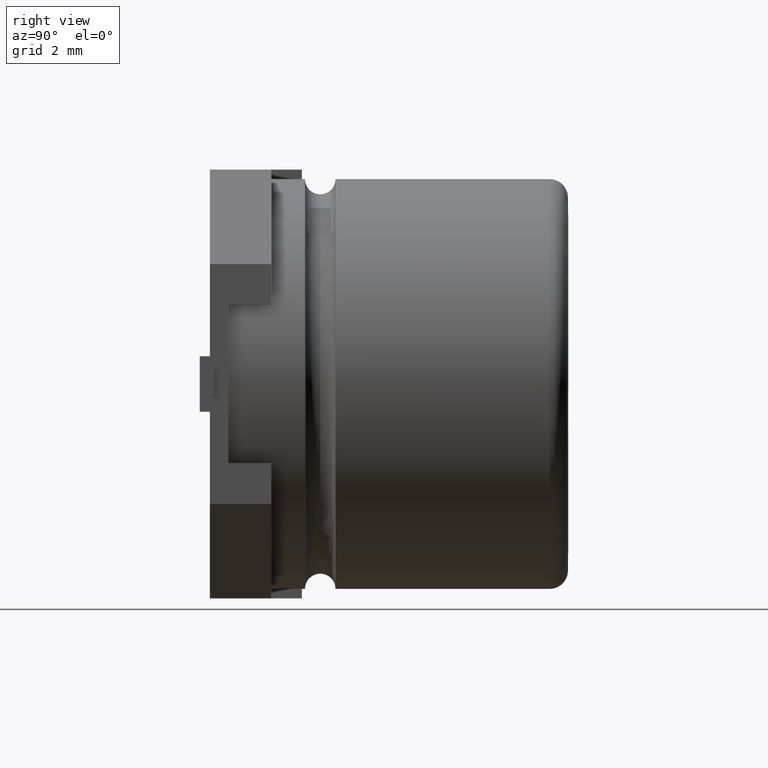
[diagram: clean part render]
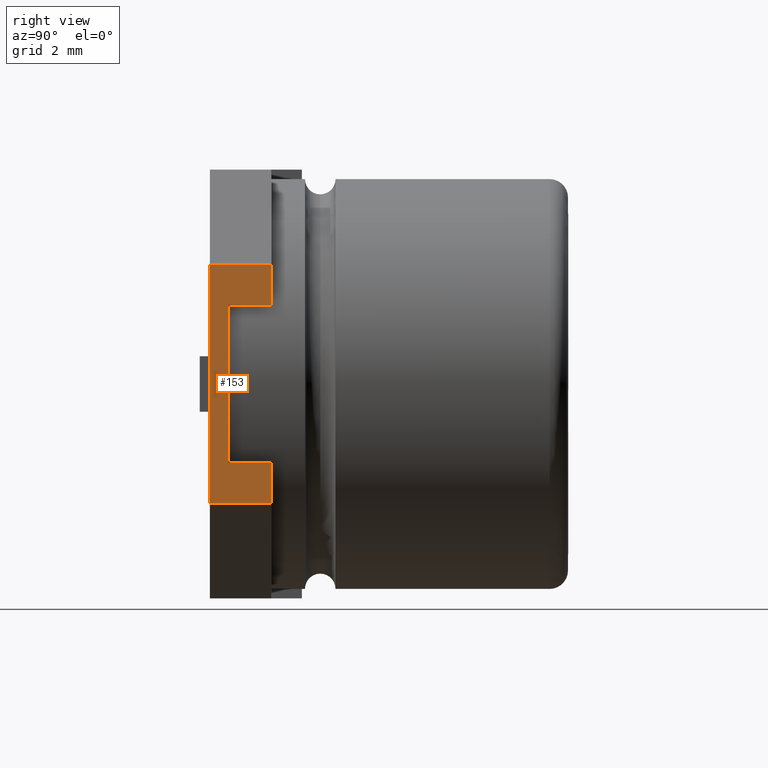
[diagram: same view with one face highlighted and labeled with its STEP entity id]
A machine part, right view. The second image highlights one B-rep face of the part: STEP entity #153.
In plain terms, the highlighted planar face has unit normal (-1, 0, 0).
Its self-contained STEP definition (entity closure, byte-faithful):
#3 = DIRECTION ( 'NONE',  ( -0.0000000000000000000, 1.000000000000000000, -0.0000000000000000000 ) ) ;
#100 = LINE ( 'NONE', #809, #484 ) ;
#116 = EDGE_CURVE ( 'NONE', #2856, #691, #1052, .T. ) ;
#153 = ADVANCED_FACE ( 'NONE', ( #771 ), #2452, .F. ) ;
#210 = VECTOR ( 'NONE', #874, 1000.000000000000000 ) ;
#285 = DIRECTION ( 'NONE',  ( 0.0000000000000000000, 0.0000000000000000000, -1.000000000000000000 ) ) ;
#391 = ORIENTED_EDGE ( 'NONE', *, *, #116, .T. ) ;
#395 = CARTESIAN_POINT ( 'NONE',  ( 8.500000000000000000, 0.0000000000000000000, 0.0000000000000000000 ) ) ;
#423 = DIRECTION ( 'NONE',  ( -0.0000000000000000000, 1.000000000000000000, -0.0000000000000000000 ) ) ;
#482 = CARTESIAN_POINT ( 'NONE',  ( 8.500000000000000000, 1.216666666666666800, -6.625750000000000000 ) ) ;
#484 = VECTOR ( 'NONE', #2912, 1000.000000000000000 ) ;
#493 = CARTESIAN_POINT ( 'NONE',  ( 8.500000000000000000, 1.216666666666666800, -1.874250000000003500 ) ) ;
#510 = VECTOR ( 'NONE', #1447, 1000.000000000000000 ) ;
#624 = VECTOR ( 'NONE', #423, 1000.000000000000000 ) ;
#653 = EDGE_CURVE ( 'NONE', #2807, #2401, #2949, .T. ) ;
#661 = LINE ( 'NONE', #1092, #2866 ) ;
#691 = VERTEX_POINT ( 'NONE', #3046 ) ;
#751 = CARTESIAN_POINT ( 'NONE',  ( 8.500000000000000000, 0.0000000000000000000, -4.800000000000000700 ) ) ;
#771 = FACE_OUTER_BOUND ( 'NONE', #2637, .T. ) ;
#800 = LINE ( 'NONE', #1361, #1045 ) ;
#809 = CARTESIAN_POINT ( 'NONE',  ( 8.500000000000000000, 1.216666666666666800, -8.500000000000000000 ) ) ;
#874 = DIRECTION ( 'NONE',  ( 0.0000000000000000000, 0.0000000000000000000, -1.000000000000000000 ) ) ;
#951 = ORIENTED_EDGE ( 'NONE', *, *, #2842, .F. ) ;
#957 = CARTESIAN_POINT ( 'NONE',  ( 8.500000000000000000, 0.3650000000000001000, -2.681561285864188200 ) ) ;
#1045 = VECTOR ( 'NONE', #1865, 1000.000000000000000 ) ;
#1052 = LINE ( 'NONE', #395, #510 ) ;
#1060 = CARTESIAN_POINT ( 'NONE',  ( 8.500000000000000000, 0.0000000000000000000, 0.0000000000000000000 ) ) ;
#1091 = DIRECTION ( 'NONE',  ( -0.0000000000000000000, 1.000000000000000000, -0.0000000000000000000 ) ) ;
#1092 = CARTESIAN_POINT ( 'NONE',  ( 8.500000000000000000, 0.0000000000000000000, -1.874250000000000000 ) ) ;
#1118 = VERTEX_POINT ( 'NONE', #1732 ) ;
#1243 = CARTESIAN_POINT ( 'NONE',  ( 8.500000000000000000, 1.216666666666666800, -5.818438714135812300 ) ) ;
#1266 = LINE ( 'NONE', #1341, #3187 ) ;
#1268 = VERTEX_POINT ( 'NONE', #493 ) ;
#1317 = EDGE_CURVE ( 'NONE', #691, #2820, #1266, .T. ) ;
#1341 = CARTESIAN_POINT ( 'NONE',  ( 8.500000000000000000, 0.0000000000000000000, -6.625750000000000000 ) ) ;
#1342 = DIRECTION ( 'NONE',  ( 0.0000000000000000000, 0.0000000000000000000, -1.000000000000000000 ) ) ;
#1343 = VERTEX_POINT ( 'NONE', #3141 ) ;
#1361 = CARTESIAN_POINT ( 'NONE',  ( 8.500000000000000000, 1.216666666666666800, -8.500000000000000000 ) ) ;
#1446 = EDGE_CURVE ( 'NONE', #1733, #1268, #100, .T. ) ;
#1447 = DIRECTION ( 'NONE',  ( 0.0000000000000000000, 0.0000000000000000000, -1.000000000000000000 ) ) ;
#1448 = LINE ( 'NONE', #957, #624 ) ;
#1487 = DIRECTION ( 'NONE',  ( -1.000000000000000000, 0.0000000000000000000, 0.0000000000000000000 ) ) ;
#1559 = ORIENTED_EDGE ( 'NONE', *, *, #2747, .T. ) ;
#1575 = CARTESIAN_POINT ( 'NONE',  ( 8.500000000000000000, 0.3650000000000001000, -5.818438714135812300 ) ) ;
#1581 = CARTESIAN_POINT ( 'NONE',  ( 8.500000000000000000, 0.3650000000000001000, -2.681561285864188200 ) ) ;
#1607 = ORIENTED_EDGE ( 'NONE', *, *, #1317, .T. ) ;
#1732 = CARTESIAN_POINT ( 'NONE',  ( 8.500000000000000000, 0.0000000000000000000, -3.700000000000000600 ) ) ;
#1733 = VERTEX_POINT ( 'NONE', #2196 ) ;
#1745 = VECTOR ( 'NONE', #3359, 1000.000000000000000 ) ;
#1777 = CARTESIAN_POINT ( 'NONE',  ( 8.500000000000000000, 1.825000000000000000, 0.0000000000000000000 ) ) ;
#1847 = ORIENTED_EDGE ( 'NONE', *, *, #1446, .T. ) ;
#1865 = DIRECTION ( 'NONE',  ( -0.0000000000000000000, -0.0000000000000000000, 1.000000000000000000 ) ) ;
#1951 = CARTESIAN_POINT ( 'NONE',  ( 8.500000000000000000, 0.3650000000000001000, -5.818438714135812300 ) ) ;
#2113 = ORIENTED_EDGE ( 'NONE', *, *, #2132, .T. ) ;
#2132 = EDGE_CURVE ( 'NONE', #1118, #2856, #2707, .T. ) ;
#2184 = AXIS2_PLACEMENT_3D ( 'NONE', #1777, #1487, #3065 ) ;
#2196 = CARTESIAN_POINT ( 'NONE',  ( 8.500000000000000000, 1.216666666666666800, -2.681561285864188200 ) ) ;
#2401 = VERTEX_POINT ( 'NONE', #1243 ) ;
#2452 = PLANE ( 'NONE',  #2184 ) ;
#2506 = VERTEX_POINT ( 'NONE', #1581 ) ;
#2563 = ORIENTED_EDGE ( 'NONE', *, *, #2918, .T. ) ;
#2594 = EDGE_CURVE ( 'NONE', #2820, #2401, #800, .T. ) ;
#2637 = EDGE_LOOP ( 'NONE', ( #1607, #2889, #2931, #3319, #1559, #1847, #951, #2563, #2113, #391 ) ) ;
#2707 = LINE ( 'NONE', #2966, #210 ) ;
#2747 = EDGE_CURVE ( 'NONE', #2506, #1733, #1448, .T. ) ;
#2784 = VECTOR ( 'NONE', #1342, 1000.000000000000000 ) ;
#2807 = VERTEX_POINT ( 'NONE', #1575 ) ;
#2820 = VERTEX_POINT ( 'NONE', #482 ) ;
#2842 = EDGE_CURVE ( 'NONE', #1343, #1268, #661, .T. ) ;
#2856 = VERTEX_POINT ( 'NONE', #751 ) ;
#2866 = VECTOR ( 'NONE', #3, 1000.000000000000000 ) ;
#2889 = ORIENTED_EDGE ( 'NONE', *, *, #2594, .T. ) ;
#2912 = DIRECTION ( 'NONE',  ( -0.0000000000000000000, -0.0000000000000000000, 1.000000000000000000 ) ) ;
#2918 = EDGE_CURVE ( 'NONE', #1343, #1118, #3379, .T. ) ;
#2931 = ORIENTED_EDGE ( 'NONE', *, *, #653, .F. ) ;
#2941 = EDGE_CURVE ( 'NONE', #2506, #2807, #3251, .T. ) ;
#2949 = LINE ( 'NONE', #1951, #1745 ) ;
#2966 = CARTESIAN_POINT ( 'NONE',  ( 8.500000000000000000, 0.0000000000000000000, 0.0000000000000000000 ) ) ;
#3046 = CARTESIAN_POINT ( 'NONE',  ( 8.500000000000000000, 0.0000000000000000000, -6.625750000000000000 ) ) ;
#3065 = DIRECTION ( 'NONE',  ( 0.0000000000000000000, 0.0000000000000000000, 1.000000000000000000 ) ) ;
#3079 = VECTOR ( 'NONE', #285, 1000.000000000000000 ) ;
#3141 = CARTESIAN_POINT ( 'NONE',  ( 8.500000000000000000, 0.0000000000000000000, -1.874250000000000000 ) ) ;
#3142 = CARTESIAN_POINT ( 'NONE',  ( 8.500000000000000000, 0.3650000000000001000, 0.0000000000000000000 ) ) ;
#3187 = VECTOR ( 'NONE', #1091, 1000.000000000000000 ) ;
#3251 = LINE ( 'NONE', #3142, #3079 ) ;
#3319 = ORIENTED_EDGE ( 'NONE', *, *, #2941, .F. ) ;
#3359 = DIRECTION ( 'NONE',  ( -0.0000000000000000000, 1.000000000000000000, -0.0000000000000000000 ) ) ;
#3379 = LINE ( 'NONE', #1060, #2784 ) ;